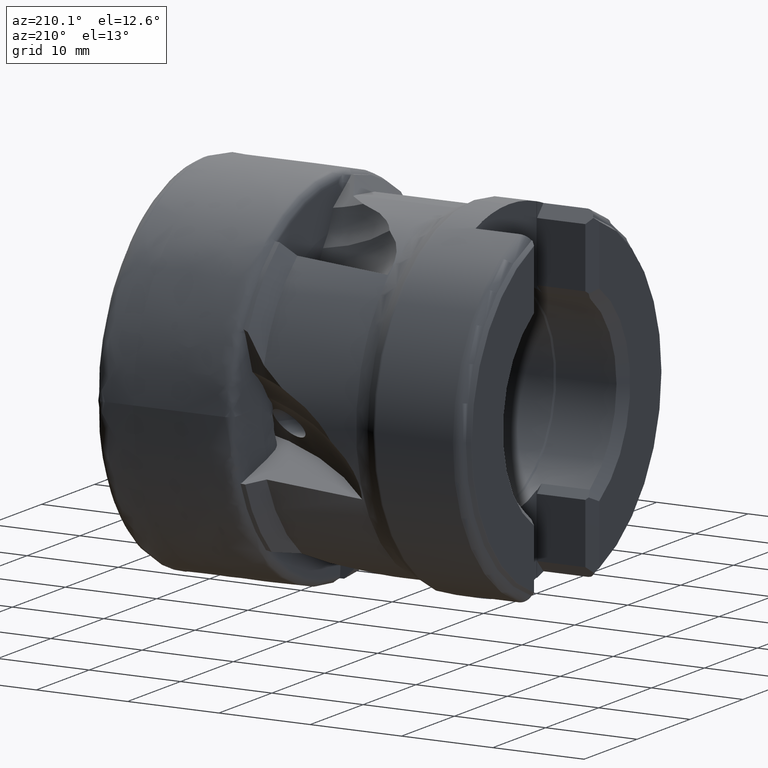
[diagram: clean part render]
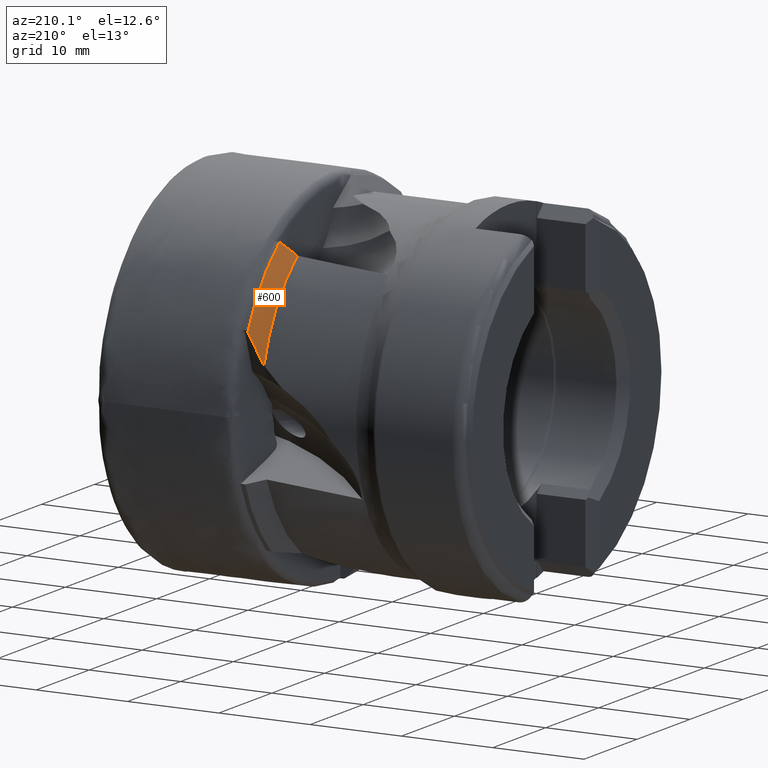
[diagram: same view with one face highlighted and labeled with its STEP entity id]
A machine part, auxiliary view. The second image highlights one B-rep face of the part: STEP entity #600.
In plain terms, the highlighted conical surface has half-angle 45 deg.
Its self-contained STEP definition (entity closure, byte-faithful):
#151 = VERTEX_POINT ( 'NONE', #5336 ) ;
#156 = VERTEX_POINT ( 'NONE', #5914 ) ;
#196 = VERTEX_POINT ( 'NONE', #5838 ) ;
#202 = VERTEX_POINT ( 'NONE', #5820 ) ;
#299 = ORIENTED_EDGE ( 'NONE', *, *, #6027, .F. ) ;
#300 = ORIENTED_EDGE ( 'NONE', *, *, #6055, .F. ) ;
#301 = ORIENTED_EDGE ( 'NONE', *, *, #6058, .T. ) ;
#302 = ORIENTED_EDGE ( 'NONE', *, *, #5562, .T. ) ;
#600 = ADVANCED_FACE ( 'NONE', ( #1423 ), #1428, .T. ) ;
#736 = AXIS2_PLACEMENT_3D ( 'NONE', #6555, #6538, #6559 ) ;
#877 = AXIS2_PLACEMENT_3D ( 'NONE', #3904, #3905, #3906 ) ;
#971 = AXIS2_PLACEMENT_3D ( 'NONE', #4849, #4850, #4851 ) ;
#1423 = FACE_OUTER_BOUND ( 'NONE', #6072, .T. ) ;
#1428 = CONICAL_SURFACE ( 'NONE', #736, 19.49999999999999600, 0.7853981633974523900 ) ;
#1861 = CIRCLE ( 'NONE', #877, 18.00000000000000400 ) ;
#2045 = CIRCLE ( 'NONE', #971, 19.49999999999999600 ) ;
#3904 = CARTESIAN_POINT ( 'NONE',  ( -15.99999999999998200, 0.0000000000000000000, 0.0000000000000000000 ) ) ;
#3905 = DIRECTION ( 'NONE',  ( 1.000000000000000000, -0.0000000000000000000, -0.0000000000000000000 ) ) ;
#3906 = DIRECTION ( 'NONE',  ( 0.0000000000000000000, 0.0000000000000000000, -1.000000000000000000 ) ) ;
#4007 = B_SPLINE_CURVE_WITH_KNOTS ( 'NONE', 3,
 ( #4626, #4634, #4638, #4639 ),
 .UNSPECIFIED., .F., .F.,
 ( 4, 4 ),
 ( 2.836755255327353700E-007, 0.002128371365054839200 ),
 .UNSPECIFIED. ) ;
#4026 = B_SPLINE_CURVE_WITH_KNOTS ( 'NONE', 3,
 ( #4855, #4856, #4861, #4862 ),
 .UNSPECIFIED., .F., .F.,
 ( 4, 4 ),
 ( 4.220602406079829200E-007, 0.003515652331772635200 ),
 .UNSPECIFIED. ) ;
#4626 = CARTESIAN_POINT ( 'NONE',  ( -14.50000000000000000, 11.79202993354276600, 15.53055150490256500 ) ) ;
#4634 = CARTESIAN_POINT ( 'NONE',  ( -15.00012246853123100, 11.53285586300998100, 15.09938846883623000 ) ) ;
#4638 = CARTESIAN_POINT ( 'NONE',  ( -15.50013267125071100, 11.27360746652376400, 14.66813984203174000 ) ) ;
#4639 = CARTESIAN_POINT ( 'NONE',  ( -15.99999999999998200, 11.01426461090205100, 14.23678246940054700 ) ) ;
#4849 = CARTESIAN_POINT ( 'NONE',  ( -14.50000000000000000, 0.0000000000000000000, 0.0000000000000000000 ) ) ;
#4850 = DIRECTION ( 'NONE',  ( 1.000000000000000000, -0.0000000000000000000, -0.0000000000000000000 ) ) ;
#4851 = DIRECTION ( 'NONE',  ( 0.0000000000000000000, 0.0000000000000000000, -1.000000000000000000 ) ) ;
#4855 = CARTESIAN_POINT ( 'NONE',  ( -14.49999999999968200, 17.80004858767727800, 7.962931010396899500 ) ) ;
#4856 = CARTESIAN_POINT ( 'NONE',  ( -15.05524316329734300, 17.64923632783994700, 6.940345718504874000 ) ) ;
#4861 = CARTESIAN_POINT ( 'NONE',  ( -15.55890046624145900, 17.50256921034908300, 5.892564612046861300 ) ) ;
#4862 = CARTESIAN_POINT ( 'NONE',  ( -16.00000000000011000, 17.34355569847285800, 4.816749498776651700 ) ) ;
#5336 = CARTESIAN_POINT ( 'NONE',  ( -16.00000000000011000, 17.34355569847285800, 4.816749498776651700 ) ) ;
#5562 = EDGE_CURVE ( 'NONE', #151, #156, #1861, .T. ) ;
#5820 = CARTESIAN_POINT ( 'NONE',  ( -14.49999999999968200, 17.80004858767727800, 7.962931010396899500 ) ) ;
#5838 = CARTESIAN_POINT ( 'NONE',  ( -14.50000000000000000, 11.79202993354276600, 15.53055150490256500 ) ) ;
#5914 = CARTESIAN_POINT ( 'NONE',  ( -15.99999999999998200, 11.01426461090205100, 14.23678246940054700 ) ) ;
#6027 = EDGE_CURVE ( 'NONE', #196, #156, #4007, .T. ) ;
#6055 = EDGE_CURVE ( 'NONE', #202, #196, #2045, .T. ) ;
#6058 = EDGE_CURVE ( 'NONE', #202, #151, #4026, .T. ) ;
#6072 = EDGE_LOOP ( 'NONE', ( #299, #300, #301, #302 ) ) ;
#6538 = DIRECTION ( 'NONE',  ( 1.000000000000000000, -0.0000000000000000000, -0.0000000000000000000 ) ) ;
#6555 = CARTESIAN_POINT ( 'NONE',  ( -14.50000000000000000, 0.0000000000000000000, 0.0000000000000000000 ) ) ;
#6559 = DIRECTION ( 'NONE',  ( 0.0000000000000000000, 0.0000000000000000000, -1.000000000000000000 ) ) ;